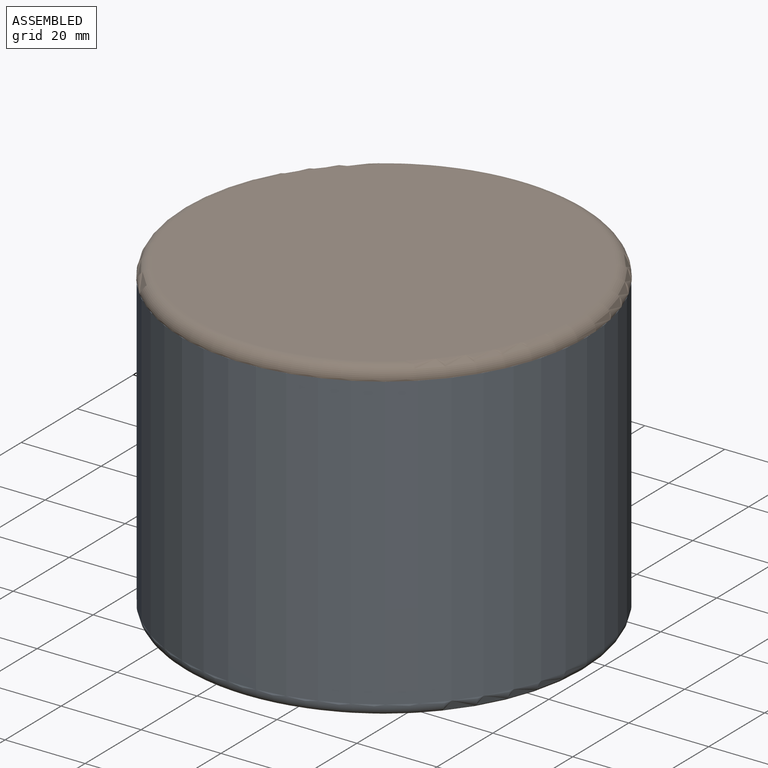
[diagram: assembled view]
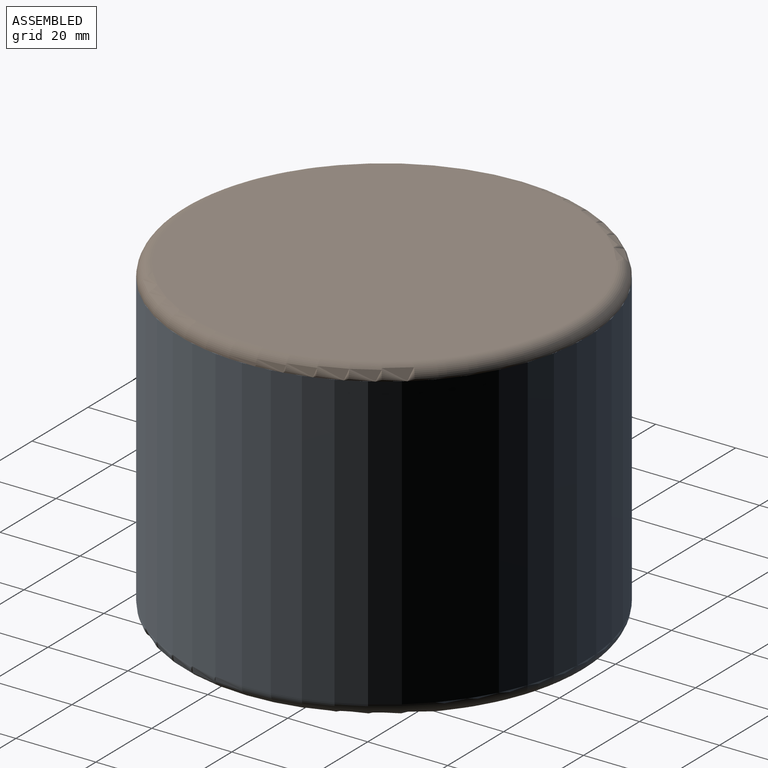
[diagram: assembled view, second angle]
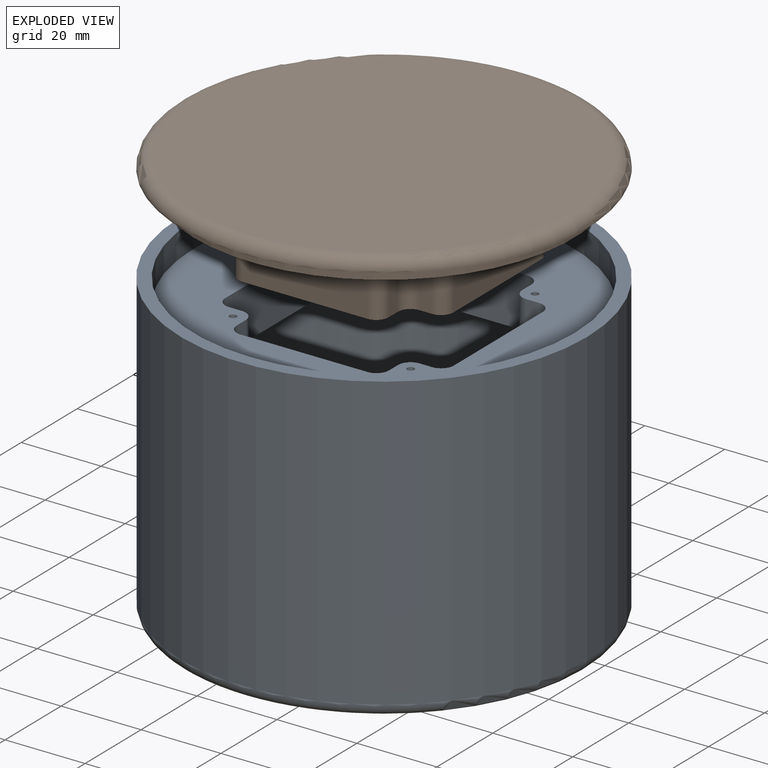
[diagram: exploded view]
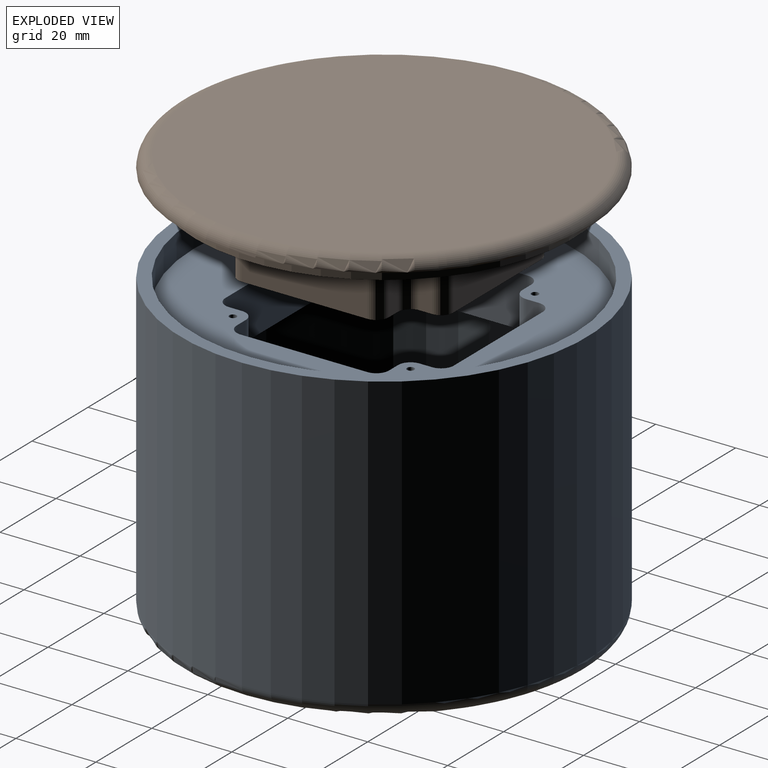
[diagram: exploded view, second angle]
ASSEMBLY  parts=2 mates=3
PART A: 37 faces, bbox 110x110x76.2 mm
  f0: cylinder r=50.8mm len=101.6mm, axis (0,0,-1), area 23308.5mm2, adj f1,f4
  f1: plane 101.6x101.6mm, normal (0,0,1), area 981.7mm2, adj f0,f3
  f2: plane 95.25x95.25mm, normal (0,0,-1), area 7125.6mm2, adj f4
  f3: cylinder r=47.62mm len=95.25mm, axis (0,0,-1), area 1900.2mm2, adj f1,f17
  f4: torus R=47.62mm, axis (0,0,1), area 1555.7mm2, adj f0,f2
  f5: plane 12.7x3.18mm, normal (1,0,0), area 40.3mm2, adj f17,f18,f21,f32
  f6: plane 31.75x12.7mm, normal (0,-1,0), area 403.2mm2, adj f17,f18,f21,f22
  f7: plane 12.7x3.18mm, normal (-1,0,0), area 40.3mm2, adj f17,f18,f22,f23
  f8: plane 12.7x3.18mm, normal (0,-1,0), area 40.3mm2, adj f17,f18,f23,f24
  f9: plane 31.75x12.7mm, normal (-1,0,0), area 403.2mm2, adj f17,f18,f24,f25
  f10: plane 12.7x3.18mm, normal (0,1,0), area 40.3mm2, adj f17,f18,f25,f26
  f11: plane 12.7x3.18mm, normal (-1,0,0), area 40.3mm2, adj f17,f18,f26,f27
  f12: plane 31.75x12.7mm, normal (0,1,0), area 403.2mm2, adj f17,f18,f27,f28
  f13: plane 12.7x3.18mm, normal (1,0,0), area 40.3mm2, adj f17,f18,f28,f29
  f14: plane 12.7x3.18mm, normal (0,1,0), area 40.3mm2, adj f17,f18,f29,f30
  f15: plane 31.75x12.7mm, normal (1,0,0), area 403.2mm2, adj f17,f18,f30,f31
  f16: plane 12.7x3.18mm, normal (0,-1,0), area 40.3mm2, adj f17,f18,f31,f32
  f17: plane 95.25x95.25mm, normal (0,0,1), area 4221.1mm2, adj f3,f5,f6,f7,f8,f9,f10,f11
  f18: plane 95.25x95.25mm, normal (0,0,-1), area 4221.1mm2, adj f5,f6,f7,f8,f9,f10,f11,f12
  f19: plane 95.25x95.25mm, normal (0,0,1), area 7125.6mm2, adj f20
  f20: cylinder r=47.62mm len=95.25mm, axis (0,0,-1), area 16151.3mm2, adj f18,f19
  f21: cylinder r=3.17mm len=12.7mm, axis (0,0,-1), area 63.3mm2, adj f5,f6,f17,f18
  f22: cylinder r=3.17mm len=12.7mm, axis (0,0,1), area 63.3mm2, adj f6,f7,f17,f18
  f23: cylinder r=3.17mm len=12.7mm, axis (0,0,1), area 63.3mm2, adj f7,f8,f17,f18
  f24: cylinder r=3.17mm len=12.7mm, axis (0,0,-1), area 63.3mm2, adj f8,f9,f17,f18
  f25: cylinder r=3.17mm len=12.7mm, axis (0,0,1), area 63.3mm2, adj f9,f10,f17,f18
  f26: cylinder r=3.17mm len=12.7mm, axis (0,0,1), area 63.3mm2, adj f10,f11,f17,f18
  f27: cylinder r=3.17mm len=12.7mm, axis (0,0,1), area 63.3mm2, adj f11,f12,f17,f18
  f28: cylinder r=3.17mm len=12.7mm, axis (0,0,-1), area 63.3mm2, adj f12,f13,f17,f18
  f29: cylinder r=3.17mm len=12.7mm, axis (0,0,1), area 63.3mm2, adj f13,f14,f17,f18
  f30: cylinder r=3.17mm len=12.7mm, axis (0,0,1), area 63.3mm2, adj f14,f15,f17,f18
  f31: cylinder r=3.17mm len=12.7mm, axis (0,0,-1), area 63.3mm2, adj f15,f16,f17,f18
  f32: cylinder r=3.17mm len=12.7mm, axis (0,0,1), area 63.3mm2, adj f5,f16,f17,f18
  f33: cylinder r=0.89mm len=12.7mm, axis (0,0,1), area 70.9mm2, adj f17,f18
  f34: cylinder r=0.89mm len=12.7mm, axis (0,0,1), area 70.9mm2, adj f17,f18
  f35: cylinder r=0.89mm len=12.7mm, axis (0,0,1), area 70.9mm2, adj f17,f18
  f36: cylinder r=0.89mm len=12.7mm, axis (0,0,1), area 70.9mm2, adj f17,f18
PART B: 30 faces, bbox 110x110x22.2 mm
  f0: plane 94.87x94.87mm, normal (0,0,1), area 4217.5mm2, adj f3,f4,f5,f6,f7,f8,f9,f10
  f1: plane 101.6x101.6mm, normal (0,0,1), area 1038.6mm2, adj f3,f29
  f2: plane 95.25x95.25mm, normal (0,0,-1), area 7125.6mm2, adj f29
  f3: cylinder r=47.43mm len=94.87mm, axis (0,0,-1), area 946.3mm2, adj f0,f1
  f4: plane 15.88x3.18mm, normal (0,1,0), area 50.4mm2, adj f0,f16,f17,f28
  f5: plane 31.37x15.88mm, normal (-1,0,0), area 498mm2, adj f0,f16,f17,f18
  f6: plane 15.88x3.18mm, normal (0,-1,0), area 50.4mm2, adj f0,f16,f18,f19
  f7: plane 15.88x3.18mm, normal (-1,0,0), area 50.4mm2, adj f0,f16,f19,f20
  f8: plane 31.37x15.88mm, normal (0,-1,0), area 498mm2, adj f0,f16,f20,f21
  f9: plane 15.88x3.18mm, normal (1,0,0), area 50.4mm2, adj f0,f16,f21,f22
  f10: plane 15.88x3.18mm, normal (0,-1,0), area 50.4mm2, adj f0,f16,f22,f23
  f11: plane 31.37x15.88mm, normal (1,0,0), area 498mm2, adj f0,f16,f23,f24
  f12: plane 15.88x3.18mm, normal (0,1,0), area 50.4mm2, adj f0,f16,f24,f25
  f13: plane 15.88x3.18mm, normal (1,0,0), area 50.4mm2, adj f0,f16,f25,f26
  f14: plane 31.37x15.88mm, normal (0,1,0), area 498mm2, adj f0,f16,f26,f27
  f15: plane 15.88x3.18mm, normal (-1,0,0), area 50.4mm2, adj f0,f16,f27,f28
  f16: plane 56.77x56.77mm, normal (0,0,1), area 2851.2mm2, adj f4,f5,f6,f7,f8,f9,f10,f11
  f17: cylinder r=3.17mm len=15.88mm, axis (0,0,1), area 79.2mm2, adj f0,f4,f5,f16
  f18: cylinder r=3.17mm len=15.88mm, axis (0,0,-1), area 79.2mm2, adj f0,f5,f6,f16
  f19: cylinder r=3.17mm len=15.88mm, axis (0,0,1), area 79.2mm2, adj f0,f6,f7,f16
  f20: cylinder r=3.17mm len=15.88mm, axis (0,0,-1), area 79.2mm2, adj f0,f7,f8,f16
  f21: cylinder r=3.17mm len=15.88mm, axis (0,0,-1), area 79.2mm2, adj f0,f8,f9,f16
  f22: cylinder r=3.17mm len=15.88mm, axis (0,0,1), area 79.2mm2, adj f0,f9,f10,f16
  f23: cylinder r=3.17mm len=15.88mm, axis (0,0,1), area 79.2mm2, adj f0,f10,f11,f16
  f24: cylinder r=3.17mm len=15.88mm, axis (0,0,-1), area 79.2mm2, adj f0,f11,f12,f16
  f25: cylinder r=3.17mm len=15.88mm, axis (0,0,1), area 79.2mm2, adj f0,f12,f13,f16
  f26: cylinder r=3.17mm len=15.88mm, axis (0,0,-1), area 79.2mm2, adj f0,f13,f14,f16
  f27: cylinder r=3.17mm len=15.88mm, axis (0,0,-1), area 79.2mm2, adj f0,f14,f15,f16
  f28: cylinder r=3.17mm len=15.88mm, axis (0,0,1), area 79.2mm2, adj f0,f4,f15,f16
  f29: torus R=47.62mm, axis (0,0,1), area 1555.7mm2, adj f1,f2
PLACE A t=(-8.37,-189.79,0)mm fixed
PLACE B rot(axis=(0,-1,0),180deg) t=(-8.37,-189.79,79.37)mm
MATE planar B.f29 <-> A.f0  axis (0,0,-1) through (-8.37,-189.79,76.2)mm
MATE revolute B.f29 <-> A.f0  axis (0,0,-1) through (-8.37,-189.79,76.2)mm
MATE parallel B.f5 <-> A.f9  axis (1,0,0) through (20.01,-189.79,65.09)mm
